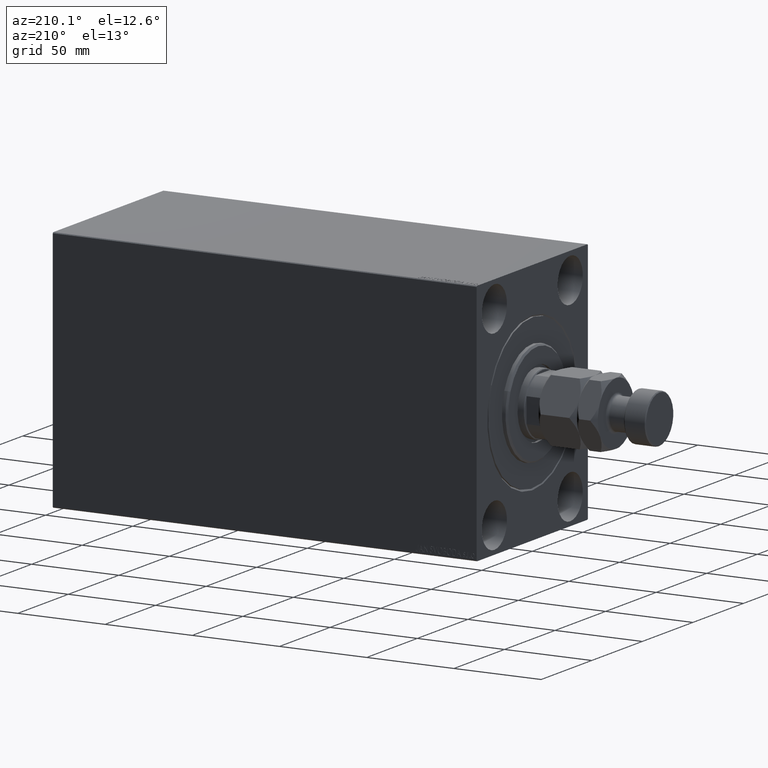
[diagram: clean part render]
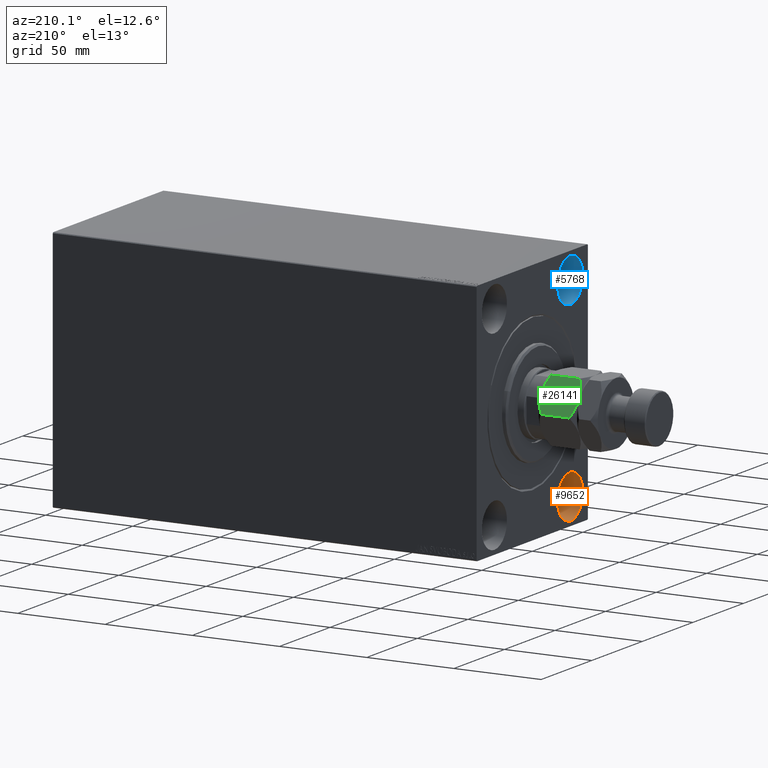
[diagram: same view with three faces highlighted in distinct colors, each labeled with its STEP entity id]
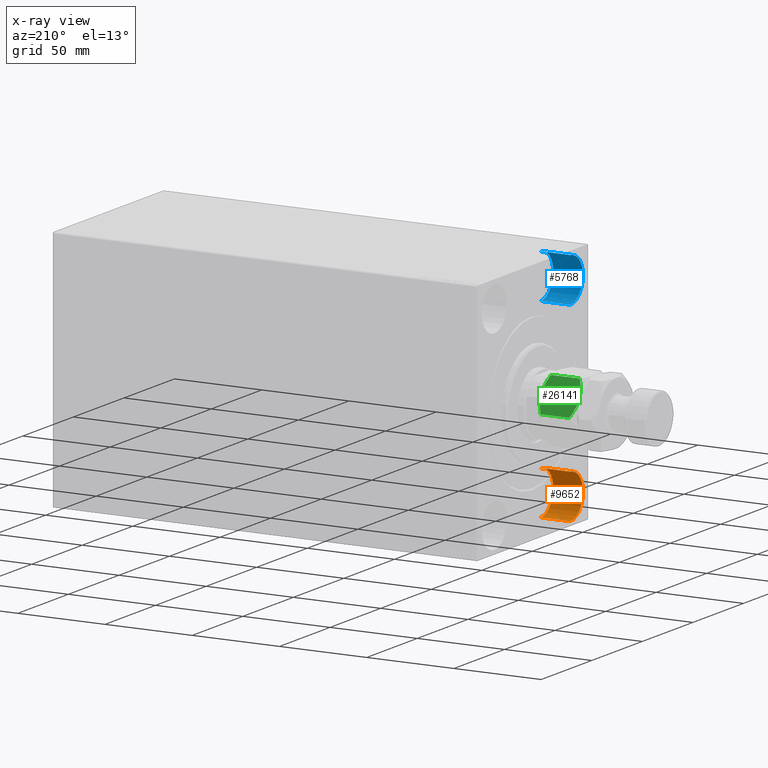
[diagram: x-ray of the same camera — body ghosted, the three highlighted faces saturated]
A machine part, auxiliary view with three faces highlighted in distinct colors.
The next image is the same camera in x-ray (body ghosted, the three faces saturated) — at least one of them is partly hidden behind the body in this view.
Their STEP definitions:

[orange] entity #9652 — the highlighted cylindrical surface (edge-blend (fillet) strip) has radius 12.5 mm, axis along (-1, -0, -0).
#1208 = AXIS2_PLACEMENT_3D ( 'NONE', #5193, #6102, #29613 ) ;
#1798 = VERTEX_POINT ( 'NONE', #6238 ) ;
#2111 = VERTEX_POINT ( 'NONE', #40951 ) ;
#2682 = CARTESIAN_POINT ( 'NONE',  ( 17.00000000000000000, -37.50000000000002132, -67.49999999999998579 ) ) ;
#3296 = CARTESIAN_POINT ( 'NONE',  ( 17.00000000000000000, -37.50000000000002132, -42.49999999999999289 ) ) ;
#5193 = CARTESIAN_POINT ( 'NONE',  ( 17.00000000000000000, -37.50000000000002132, -54.99999999999999289 ) ) ;
#6102 = DIRECTION ( 'NONE',  ( -1.000000000000000000, -0.000000000000000000, -0.000000000000000000 ) ) ;
#6238 = CARTESIAN_POINT ( 'NONE',  ( 0.000000000000000000, -37.50000000000002132, -42.49999999999999289 ) ) ;
#6785 = EDGE_CURVE ( 'NONE', #39273, #1798, #24467, .T. ) ;
#7758 = CIRCLE ( 'NONE', #19530, 12.49999999999999645 ) ;
#8191 = VECTOR ( 'NONE', #26644, 1000.000000000000000 ) ;
#9111 = CYLINDRICAL_SURFACE ( 'NONE', #1208, 12.49999999999999645 ) ;
#9397 = EDGE_CURVE ( 'NONE', #40312, #1798, #7758, .T. ) ;
#9652 = ADVANCED_FACE ( 'NONE', ( #26599 ), #9111, .F. ) ;
#16156 = CARTESIAN_POINT ( 'NONE',  ( 17.00000000000000000, -37.50000000000002132, -42.49999999999999289 ) ) ;
#16698 = DIRECTION ( 'NONE',  ( 0.000000000000000000, 0.000000000000000000, 1.000000000000000000 ) ) ;
#16814 = DIRECTION ( 'NONE',  ( 0.000000000000000000, 0.000000000000000000, 1.000000000000000000 ) ) ;
#19530 = AXIS2_PLACEMENT_3D ( 'NONE', #41206, #26937, #16814 ) ;
#22995 = ORIENTED_EDGE ( 'NONE', *, *, #27741, .T. ) ;
#24467 = LINE ( 'NONE', #3296, #43637 ) ;
#26420 = LINE ( 'NONE', #2682, #8191 ) ;
#26599 = FACE_OUTER_BOUND ( 'NONE', #31586, .T. ) ;
#26644 = DIRECTION ( 'NONE',  ( -1.000000000000000000, -0.000000000000000000, -0.000000000000000000 ) ) ;
#26937 = DIRECTION ( 'NONE',  ( -1.000000000000000000, 0.000000000000000000, 0.000000000000000000 ) ) ;
#27741 = EDGE_CURVE ( 'NONE', #2111, #40312, #26420, .T. ) ;
#27989 = ORIENTED_EDGE ( 'NONE', *, *, #9397, .T. ) ;
#29613 = DIRECTION ( 'NONE',  ( 0.000000000000000000, 0.000000000000000000, 1.000000000000000000 ) ) ;
#30053 = ORIENTED_EDGE ( 'NONE', *, *, #42940, .F. ) ;
#31586 = EDGE_LOOP ( 'NONE', ( #30053, #22995, #27989, #31933 ) ) ;
#31933 = ORIENTED_EDGE ( 'NONE', *, *, #6785, .F. ) ;
#34805 = CIRCLE ( 'NONE', #39206, 12.49999999999999645 ) ;
#36960 = DIRECTION ( 'NONE',  ( -1.000000000000000000, 0.000000000000000000, 0.000000000000000000 ) ) ;
#39206 = AXIS2_PLACEMENT_3D ( 'NONE', #40643, #36960, #16698 ) ;
#39273 = VERTEX_POINT ( 'NONE', #16156 ) ;
#39839 = CARTESIAN_POINT ( 'NONE',  ( 0.000000000000000000, -37.50000000000002132, -67.49999999999998579 ) ) ;
#40312 = VERTEX_POINT ( 'NONE', #39839 ) ;
#40643 = CARTESIAN_POINT ( 'NONE',  ( 17.00000000000000000, -37.50000000000002132, -54.99999999999999289 ) ) ;
#40951 = CARTESIAN_POINT ( 'NONE',  ( 17.00000000000000000, -37.50000000000002132, -67.49999999999998579 ) ) ;
#41206 = CARTESIAN_POINT ( 'NONE',  ( 0.000000000000000000, -37.50000000000002132, -54.99999999999999289 ) ) ;
#41967 = DIRECTION ( 'NONE',  ( -1.000000000000000000, -0.000000000000000000, -0.000000000000000000 ) ) ;
#42940 = EDGE_CURVE ( 'NONE', #2111, #39273, #34805, .T. ) ;
#43637 = VECTOR ( 'NONE', #41967, 1000.000000000000000 ) ;

[blue] entity #5768 — the highlighted cylindrical surface (edge-blend (fillet) strip) has radius 12.5 mm, axis along (-1, -0, -0).
#93 = CARTESIAN_POINT ( 'NONE',  ( 0.000000000000000000, -37.50000000000000711, 67.50000000000000000 ) ) ;
#308 = EDGE_CURVE ( 'NONE', #40944, #18104, #10128, .T. ) ;
#751 = DIRECTION ( 'NONE',  ( -1.000000000000000000, 0.000000000000000000, 0.000000000000000000 ) ) ;
#938 = EDGE_CURVE ( 'NONE', #40944, #27577, #32439, .T. ) ;
#1429 = CARTESIAN_POINT ( 'NONE',  ( 0.000000000000000000, -37.50000000000000711, 55.00000000000000711 ) ) ;
#1692 = DIRECTION ( 'NONE',  ( -1.000000000000000000, -0.000000000000000000, -0.000000000000000000 ) ) ;
#3207 = DIRECTION ( 'NONE',  ( -1.000000000000000000, -0.000000000000000000, -0.000000000000000000 ) ) ;
#5768 = ADVANCED_FACE ( 'NONE', ( #12512 ), #16427, .F. ) ;
#7706 = CARTESIAN_POINT ( 'NONE',  ( 0.000000000000000000, -37.50000000000000711, 42.50000000000000711 ) ) ;
#8605 = DIRECTION ( 'NONE',  ( 0.000000000000000000, 0.000000000000000000, 1.000000000000000000 ) ) ;
#9722 = VERTEX_POINT ( 'NONE', #93 ) ;
#10128 = LINE ( 'NONE', #38665, #26534 ) ;
#11357 = DIRECTION ( 'NONE',  ( 0.000000000000000000, 0.000000000000000000, 1.000000000000000000 ) ) ;
#12512 = FACE_OUTER_BOUND ( 'NONE', #40493, .T. ) ;
#14793 = CARTESIAN_POINT ( 'NONE',  ( 17.00000000000000000, -37.50000000000000711, 55.00000000000000711 ) ) ;
#15342 = AXIS2_PLACEMENT_3D ( 'NONE', #1429, #751, #11357 ) ;
#15614 = VECTOR ( 'NONE', #3207, 1000.000000000000000 ) ;
#16427 = CYLINDRICAL_SURFACE ( 'NONE', #31841, 12.49999999999999645 ) ;
#17368 = ORIENTED_EDGE ( 'NONE', *, *, #20951, .T. ) ;
#18104 = VERTEX_POINT ( 'NONE', #7706 ) ;
#18708 = DIRECTION ( 'NONE',  ( 0.000000000000000000, 0.000000000000000000, 1.000000000000000000 ) ) ;
#20951 = EDGE_CURVE ( 'NONE', #18104, #9722, #22699, .T. ) ;
#22699 = CIRCLE ( 'NONE', #15342, 12.49999999999999645 ) ;
#25134 = DIRECTION ( 'NONE',  ( -1.000000000000000000, 0.000000000000000000, 0.000000000000000000 ) ) ;
#25571 = ORIENTED_EDGE ( 'NONE', *, *, #938, .F. ) ;
#25877 = ORIENTED_EDGE ( 'NONE', *, *, #308, .T. ) ;
#26534 = VECTOR ( 'NONE', #34759, 1000.000000000000000 ) ;
#27577 = VERTEX_POINT ( 'NONE', #30388 ) ;
#30388 = CARTESIAN_POINT ( 'NONE',  ( 17.00000000000000000, -37.50000000000000711, 67.50000000000000000 ) ) ;
#30473 = CARTESIAN_POINT ( 'NONE',  ( 17.00000000000000000, -37.50000000000000711, 55.00000000000000711 ) ) ;
#31841 = AXIS2_PLACEMENT_3D ( 'NONE', #30473, #1692, #8605 ) ;
#32439 = CIRCLE ( 'NONE', #38302, 12.49999999999999645 ) ;
#34759 = DIRECTION ( 'NONE',  ( -1.000000000000000000, -0.000000000000000000, -0.000000000000000000 ) ) ;
#35247 = EDGE_CURVE ( 'NONE', #27577, #9722, #38430, .T. ) ;
#35416 = CARTESIAN_POINT ( 'NONE',  ( 17.00000000000000000, -37.50000000000000711, 42.50000000000000711 ) ) ;
#38302 = AXIS2_PLACEMENT_3D ( 'NONE', #14793, #25134, #18708 ) ;
#38430 = LINE ( 'NONE', #41884, #15614 ) ;
#38665 = CARTESIAN_POINT ( 'NONE',  ( 17.00000000000000000, -37.50000000000000711, 42.50000000000000711 ) ) ;
#40493 = EDGE_LOOP ( 'NONE', ( #25571, #25877, #17368, #43780 ) ) ;
#40944 = VERTEX_POINT ( 'NONE', #35416 ) ;
#41884 = CARTESIAN_POINT ( 'NONE',  ( 17.00000000000000000, -37.50000000000000711, 67.50000000000000000 ) ) ;
#43780 = ORIENTED_EDGE ( 'NONE', *, *, #35247, .F. ) ;

[green] entity #26141 — the highlighted planar face has unit normal (-0, -0.866, -0.5).
#236 = VECTOR ( 'NONE', #15692, 1000.000000000000000 ) ;
#385 = ORIENTED_EDGE ( 'NONE', *, *, #44265, .F. ) ;
#432 = CARTESIAN_POINT ( 'NONE',  ( 16.58866960374795241, 11.20713682960488100, 20.03022229336509596 ) ) ;
#1452 = EDGE_CURVE ( 'NONE', #19098, #1948, #37586, .T. ) ;
#1478 = CARTESIAN_POINT ( 'NONE',  ( 8.999999999999998224, 15.58845726811989429, 0.000000000000000000 ) ) ;
#1591 = CARTESIAN_POINT ( 'NONE',  ( 18.00000000000000000, 10.39230484541326227, 22.00000000000000000 ) ) ;
#1791 = CARTESIAN_POINT ( 'NONE',  ( 10.97671975407794953, 14.44719758599053705, 21.86127740090141458 ) ) ;
#1948 = VERTEX_POINT ( 'NONE', #41464 ) ;
#3246 = CARTESIAN_POINT ( 'NONE',  ( 9.000000000000000000, 15.58845726811989074, 22.00000000000000000 ) ) ;
#3447 = EDGE_LOOP ( 'NONE', ( #8415, #34150, #17961, #385, #8096, #35043 ) ) ;
#4593 = CARTESIAN_POINT ( 'NONE',  ( 8.999999999999998224, 15.58845726811989429, 0.000000000000000000 ) ) ;
#4802 = CARTESIAN_POINT ( 'NONE',  ( 10.58425150785354418, 14.67378923359658138, 21.91305310988184374 ) ) ;
#5049 = DIRECTION ( 'NONE',  ( -0.4999999999999999445, -0.8660254037844387076, 0.000000000000000000 ) ) ;
#6131 = EDGE_CURVE ( 'NONE', #15149, #45308, #36641, .T. ) ;
#6533 = CARTESIAN_POINT ( 'NONE',  ( -2.339913671058857151E-16, 20.78460969082652454, 19.21539030917348256 ) ) ;
#6834 = CARTESIAN_POINT ( 'NONE',  ( 5.097327296964719423, 17.84166640377631197, 0.5370855558290075216 ) ) ;
#7281 = CARTESIAN_POINT ( 'NONE',  ( 8.605874323383767788, 15.81600583360882162, -3.502481236896532691E-15 ) ) ;
#8096 = ORIENTED_EDGE ( 'NONE', *, *, #32773, .T. ) ;
#8415 = ORIENTED_EDGE ( 'NONE', *, *, #36056, .F. ) ;
#8487 = CARTESIAN_POINT ( 'NONE',  ( 9.000000000000000000, 15.58845726811989074, 22.00000000000000000 ) ) ;
#8512 = FACE_OUTER_BOUND ( 'NONE', #3447, .T. ) ;
#8735 = PLANE ( 'NONE',  #28727 ) ;
#8842 = CARTESIAN_POINT ( 'NONE',  ( 18.00000000000000000, 10.39230484541326227, 2.784609690826518325 ) ) ;
#9807 = VECTOR ( 'NONE', #29308, 1000.000000000000000 ) ;
#10739 = CARTESIAN_POINT ( 'NONE',  ( 1.411330396252046260, 19.96977770663490759, 1.969777706634896708 ) ) ;
#11024 = CARTESIAN_POINT ( 'NONE',  ( 12.90267270303527525, 13.33524813246346952, 21.46291444417098759 ) ) ;
#11196 = CARTESIAN_POINT ( 'NONE',  ( 18.00000000000000000, 10.39230484541326227, 19.21539030917347901 ) ) ;
#14146 = CARTESIAN_POINT ( 'NONE',  ( 9.000000000000000000, 15.58845726811989074, 22.00000000000000000 ) ) ;
#14202 = CARTESIAN_POINT ( 'NONE',  ( 5.858009779716799592, 17.40248616759157230, 0.3405631022552657039 ) ) ;
#15149 = VERTEX_POINT ( 'NONE', #6533 ) ;
#15692 = DIRECTION ( 'NONE',  ( -0.000000000000000000, -0.000000000000000000, -1.000000000000000000 ) ) ;
#16346 = VERTEX_POINT ( 'NONE', #11196 ) ;
#17961 = ORIENTED_EDGE ( 'NONE', *, *, #21035, .F. ) ;
#18151 = B_SPLINE_CURVE_WITH_KNOTS ( 'NONE', 3,
 ( #28519, #432, #42567, #11024, #39107, #1791, #4802, #44153, #43262, #8487 ),
 .UNSPECIFIED., .F., .F.,
 ( 4, 2, 2, 2, 4 ),
 ( 2.544307986796311447E-07, 0.005386537354063075135, 0.008079678815695273339, 0.009426249546511372007, 0.01077282027732746894 ),
 .UNSPECIFIED. ) ;
#18728 = LINE ( 'NONE', #32772, #9807 ) ;
#19098 = VERTEX_POINT ( 'NONE', #4593 ) ;
#19148 = CARTESIAN_POINT ( 'NONE',  ( 0.000000000000000000, 20.78460969082652454, 22.00000000000000000 ) ) ;
#20225 = CARTESIAN_POINT ( 'NONE',  ( -1.065242688631141971E-15, 20.78460969082652454, 2.784609690826513440 ) ) ;
#20747 = CARTESIAN_POINT ( 'NONE',  ( 7.434539168300457135, 16.49227650070744033, 22.00000000000000711 ) ) ;
#21035 = EDGE_CURVE ( 'NONE', #44794, #15149, #32560, .T. ) ;
#22333 = B_SPLINE_CURVE_WITH_KNOTS ( 'NONE', 3,
 ( #35613, #10739, #45289, #6834, #14202, #28012, #27785, #38604, #7281, #34702 ),
 .UNSPECIFIED., .F., .F.,
 ( 4, 2, 2, 2, 4 ),
 ( 2.544307986815284985E-07, 0.005386537354063076002, 0.008079678815695275074, 0.009426249546511372007, 0.01077282027732746894 ),
 .UNSPECIFIED. ) ;
#22671 = CARTESIAN_POINT ( 'NONE',  ( 15.13928418966203004, 12.04393988858690179, 1.272574701504239680 ) ) ;
#24864 = CARTESIAN_POINT ( 'NONE',  ( -2.339913671058857151E-16, 20.78460969082652454, 19.21539030917348256 ) ) ;
#26113 = CARTESIAN_POINT ( 'NONE',  ( 12.10430252359947900, 13.79618737047370125, 0.2763959071215808527 ) ) ;
#26141 = ADVANCED_FACE ( 'NONE', ( #8512 ), #8735, .F. ) ;
#27785 = CARTESIAN_POINT ( 'NONE',  ( 7.415748492146453152, 16.50312530264320898, 0.08694689011815050217 ) ) ;
#28012 = CARTESIAN_POINT ( 'NONE',  ( 7.023280245922045140, 16.72971695024924443, 0.1387225990985735125 ) ) ;
#28519 = CARTESIAN_POINT ( 'NONE',  ( 18.00000000000000000, 10.39230484541326227, 19.21539030917347901 ) ) ;
#28727 = AXIS2_PLACEMENT_3D ( 'NONE', #1591, #5049, #32245 ) ;
#29308 = DIRECTION ( 'NONE',  ( -0.000000000000000000, -0.000000000000000000, -1.000000000000000000 ) ) ;
#29576 = CARTESIAN_POINT ( 'NONE',  ( 16.59030399953601531, 11.20619321075668218, 1.970721325483050235 ) ) ;
#32022 = CARTESIAN_POINT ( 'NONE',  ( 1.409696000463982912, 19.97072132548310108, 20.02927867451694510 ) ) ;
#32245 = DIRECTION ( 'NONE',  ( 0.8660254037844387076, -0.4999999999999999445, 0.000000000000000000 ) ) ;
#32560 = B_SPLINE_CURVE_WITH_KNOTS ( 'NONE', 3,
 ( #3246, #20747, #38236, #35012, #32022, #24864 ),
 .UNSPECIFIED., .F., .F.,
 ( 4, 2, 4 ),
 ( 0.01077282027732746894, 0.01612137750481873466, 0.02146993473231000385 ),
 .UNSPECIFIED. ) ;
#32772 = CARTESIAN_POINT ( 'NONE',  ( 18.00000000000000000, 10.39230484541326227, 22.00000000000000000 ) ) ;
#32773 = EDGE_CURVE ( 'NONE', #16346, #1948, #18728, .T. ) ;
#34150 = ORIENTED_EDGE ( 'NONE', *, *, #6131, .F. ) ;
#34702 = CARTESIAN_POINT ( 'NONE',  ( 8.999999999999998224, 15.58845726811989429, 0.000000000000000000 ) ) ;
#35012 = CARTESIAN_POINT ( 'NONE',  ( 2.860715810337963738, 19.13297464765287259, 20.72742529849575277 ) ) ;
#35043 = ORIENTED_EDGE ( 'NONE', *, *, #1452, .F. ) ;
#35613 = CARTESIAN_POINT ( 'NONE',  ( -1.065242688631141971E-15, 20.78460969082652454, 2.784609690826513440 ) ) ;
#36056 = EDGE_CURVE ( 'NONE', #45308, #19098, #22333, .T. ) ;
#36261 = CARTESIAN_POINT ( 'NONE',  ( 10.56546083169953754, 14.68463803553234825, -3.293264098924718535E-15 ) ) ;
#36641 = LINE ( 'NONE', #19148, #236 ) ;
#37586 = B_SPLINE_CURVE_WITH_KNOTS ( 'NONE', 3,
 ( #1478, #36261, #26113, #22671, #29576, #8842 ),
 .UNSPECIFIED., .F., .F.,
 ( 4, 2, 4 ),
 ( 0.01077282027732746894, 0.01612137750481873466, 0.02146993473231000038 ),
 .UNSPECIFIED. ) ;
#38236 = CARTESIAN_POINT ( 'NONE',  ( 5.895697476400520110, 17.38072716576608201, 21.72360409287842131 ) ) ;
#38604 = CARTESIAN_POINT ( 'NONE',  ( 8.209538469370125213, 16.04483044561309768, 0.01733285647408576435 ) ) ;
#39107 = CARTESIAN_POINT ( 'NONE',  ( 12.14199022028319774, 13.77442836864821629, 21.65943689774472602 ) ) ;
#41464 = CARTESIAN_POINT ( 'NONE',  ( 18.00000000000000000, 10.39230484541326227, 2.784609690826518325 ) ) ;
#42567 = CARTESIAN_POINT ( 'NONE',  ( 15.14539811114618573, 12.04041001437222214, 20.72261692211012729 ) ) ;
#43262 = CARTESIAN_POINT ( 'NONE',  ( 9.394125676616230436, 15.36090870263096875, 22.00000000000000000 ) ) ;
#44153 = CARTESIAN_POINT ( 'NONE',  ( 9.790461530629873010, 15.13208409062669624, 21.98266714352591578 ) ) ;
#44265 = EDGE_CURVE ( 'NONE', #16346, #44794, #18151, .T. ) ;
#44794 = VERTEX_POINT ( 'NONE', #14146 ) ;
#45289 = CARTESIAN_POINT ( 'NONE',  ( 2.854601888853809388, 19.13650452186755757, 1.277383077889868046 ) ) ;
#45308 = VERTEX_POINT ( 'NONE', #20225 ) ;